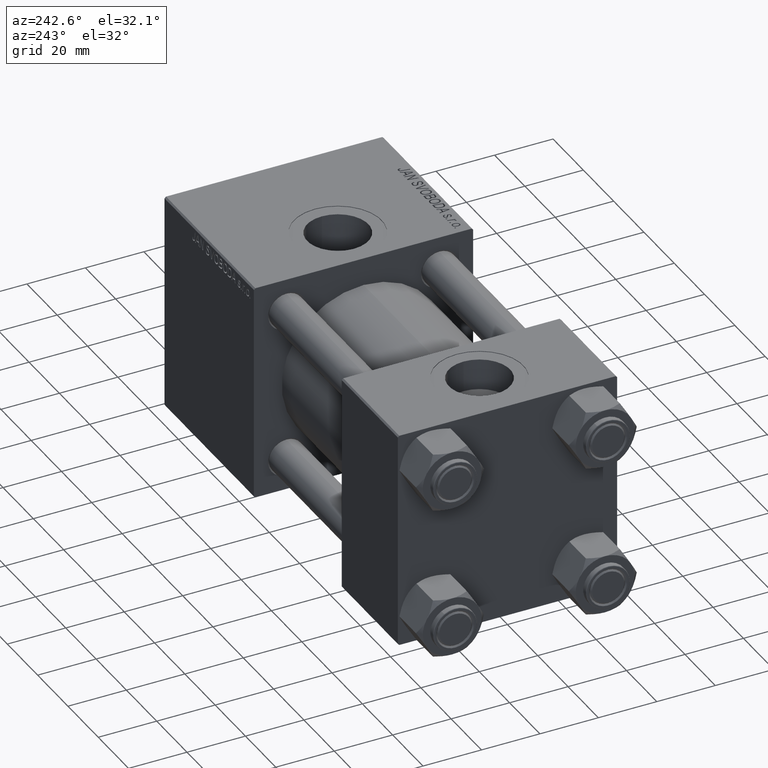
[diagram: clean part render]
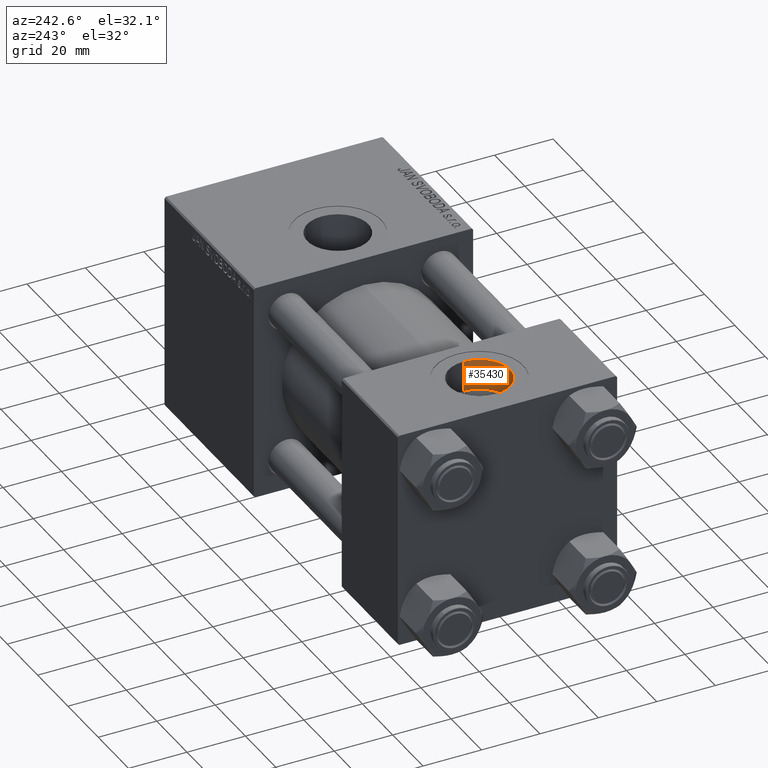
[diagram: same view with one face highlighted and labeled with its STEP entity id]
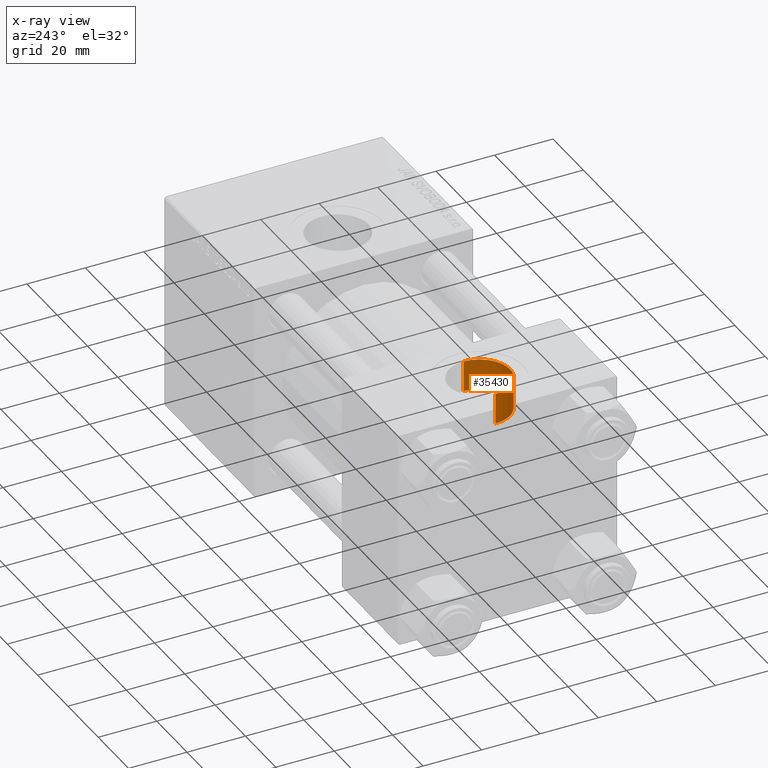
[diagram: x-ray of the same camera — body ghosted, the highlighted face saturated]
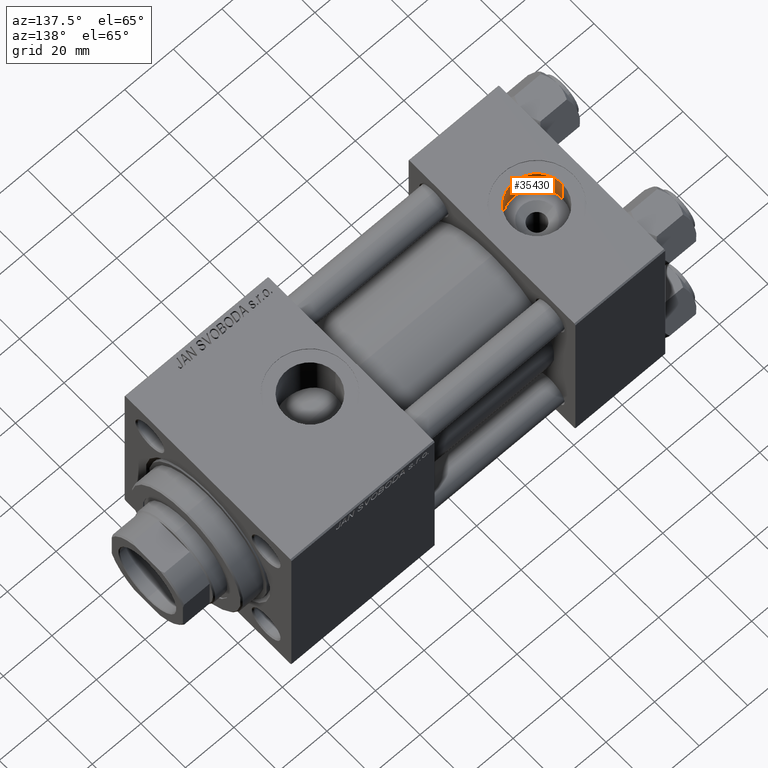
[diagram: same view with one face highlighted and labeled with its STEP entity id]
A machine part, auxiliary view. The second image highlights one B-rep face of the part: STEP entity #35430.
The next image is the same camera in x-ray: the body ghosted, the highlighted face saturated — about 0% of this face is hidden behind the body in this view.
A second angle (auxiliary view) of the same face is appended — the face is thin or edge-on in the first view.
In plain terms, the highlighted cylindrical surface (edge-blend (fillet) strip) has radius 10.48 mm, axis along (0, 0, 1).
Its self-contained STEP definition (entity closure, byte-faithful):
#921 = EDGE_CURVE ( 'NONE', #39204, #44879, #44439, .T. ) ;
#3816 = ORIENTED_EDGE ( 'NONE', *, *, #921, .F. ) ;
#4112 = CARTESIAN_POINT ( 'NONE',  ( 18.50000000000000000, -5.204170427930421283E-15, 26.69999999999999929 ) ) ;
#8215 = VECTOR ( 'NONE', #39959, 1000.000000000000000 ) ;
#9542 = AXIS2_PLACEMENT_3D ( 'NONE', #4112, #27685, #28172 ) ;
#11862 = EDGE_CURVE ( 'NONE', #16546, #48505, #47969, .T. ) ;
#12366 = DIRECTION ( 'NONE',  ( -0.000000000000000000, -0.000000000000000000, 1.000000000000000000 ) ) ;
#13777 = DIRECTION ( 'NONE',  ( 1.000000000000000000, 0.000000000000000000, 0.000000000000000000 ) ) ;
#14359 = CARTESIAN_POINT ( 'NONE',  ( 8.019999999999999574, -3.920740582423995006E-15, 37.29999999999999716 ) ) ;
#16546 = VERTEX_POINT ( 'NONE', #14359 ) ;
#17321 = CARTESIAN_POINT ( 'NONE',  ( 18.50000000000000000, -5.204170427930421283E-15, 37.29999999999999716 ) ) ;
#18365 = ORIENTED_EDGE ( 'NONE', *, *, #32053, .T. ) ;
#18593 = AXIS2_PLACEMENT_3D ( 'NONE', #27048, #12366, #35181 ) ;
#21687 = CARTESIAN_POINT ( 'NONE',  ( 28.98000000000000043, -5.204170427930421283E-15, 26.69999999999999929 ) ) ;
#23995 = FACE_OUTER_BOUND ( 'NONE', #42134, .T. ) ;
#25420 = DIRECTION ( 'NONE',  ( 0.000000000000000000, 0.000000000000000000, 1.000000000000000000 ) ) ;
#25489 = LINE ( 'NONE', #21687, #8215 ) ;
#27048 = CARTESIAN_POINT ( 'NONE',  ( 18.50000000000000000, -5.204170427930421283E-15, 26.69999999999999929 ) ) ;
#27685 = DIRECTION ( 'NONE',  ( 0.000000000000000000, 0.000000000000000000, 1.000000000000000000 ) ) ;
#28172 = DIRECTION ( 'NONE',  ( 1.000000000000000000, 0.000000000000000000, 0.000000000000000000 ) ) ;
#29019 = DIRECTION ( 'NONE',  ( -0.000000000000000000, -0.000000000000000000, 1.000000000000000000 ) ) ;
#30105 = ORIENTED_EDGE ( 'NONE', *, *, #47983, .F. ) ;
#30250 = CARTESIAN_POINT ( 'NONE',  ( 8.019999999999999574, -3.920740582423995006E-15, 26.69999999999999929 ) ) ;
#32053 = EDGE_CURVE ( 'NONE', #39204, #16546, #43743, .T. ) ;
#35181 = DIRECTION ( 'NONE',  ( 1.000000000000000000, 0.000000000000000000, 0.000000000000000000 ) ) ;
#35430 = ADVANCED_FACE ( 'NONE', ( #23995 ), #39475, .F. ) ;
#35786 = AXIS2_PLACEMENT_3D ( 'NONE', #17321, #25420, #13777 ) ;
#38114 = CARTESIAN_POINT ( 'NONE',  ( 28.98000000000000043, -5.204170427930421283E-15, 26.69999999999999929 ) ) ;
#39204 = VERTEX_POINT ( 'NONE', #30250 ) ;
#39475 = CYLINDRICAL_SURFACE ( 'NONE', #18593, 10.48000000000000043 ) ;
#39959 = DIRECTION ( 'NONE',  ( -0.000000000000000000, -0.000000000000000000, 1.000000000000000000 ) ) ;
#40177 = CARTESIAN_POINT ( 'NONE',  ( 8.019999999999999574, -3.920740582423995006E-15, 26.69999999999999929 ) ) ;
#42134 = EDGE_LOOP ( 'NONE', ( #3816, #18365, #44429, #30105 ) ) ;
#42769 = VECTOR ( 'NONE', #29019, 1000.000000000000000 ) ;
#42907 = CARTESIAN_POINT ( 'NONE',  ( 28.98000000000000043, -5.204170427930421283E-15, 37.29999999999999716 ) ) ;
#43743 = LINE ( 'NONE', #40177, #42769 ) ;
#44429 = ORIENTED_EDGE ( 'NONE', *, *, #11862, .T. ) ;
#44439 = CIRCLE ( 'NONE', #9542, 10.48000000000000043 ) ;
#44879 = VERTEX_POINT ( 'NONE', #38114 ) ;
#47969 = CIRCLE ( 'NONE', #35786, 10.48000000000000043 ) ;
#47983 = EDGE_CURVE ( 'NONE', #44879, #48505, #25489, .T. ) ;
#48505 = VERTEX_POINT ( 'NONE', #42907 ) ;